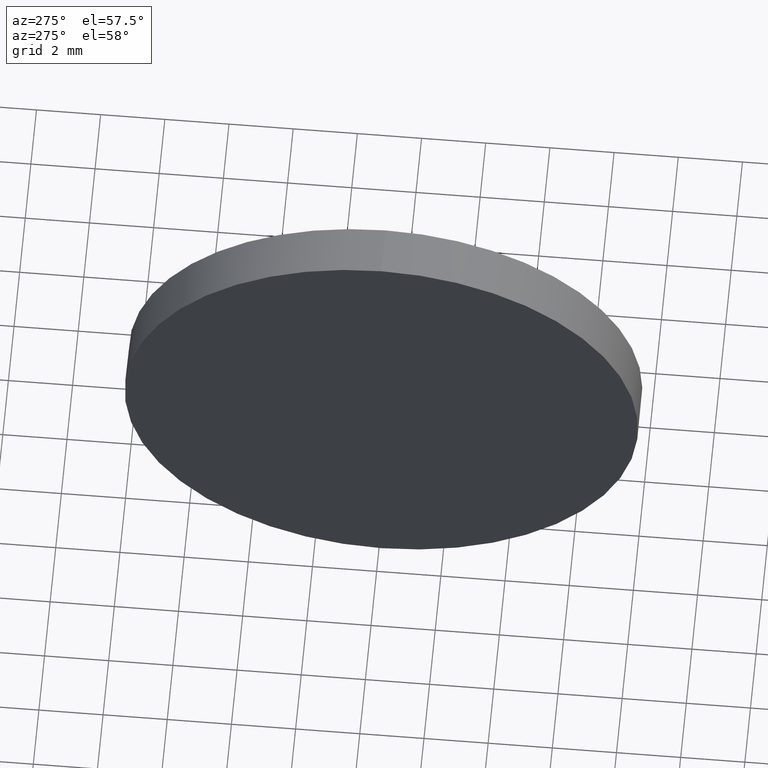
[diagram: clean part render]
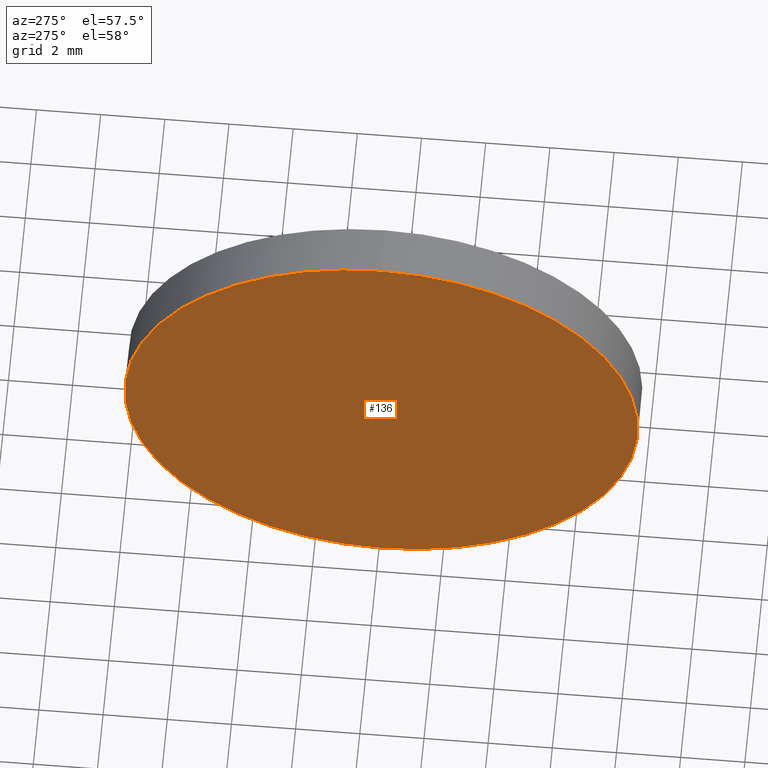
[diagram: same view with one face highlighted and labeled with its STEP entity id]
A machine part, auxiliary view. The second image highlights one B-rep face of the part: STEP entity #136.
In plain terms, the highlighted planar face has unit normal (1, 0, 0).
Its self-contained STEP definition (entity closure, byte-faithful):
#21 = DIRECTION ( 'NONE',  ( -1.000000000000000000, -0.0000000000000000000, -0.0000000000000000000 ) ) ;
#23 = CARTESIAN_POINT ( 'NONE',  ( 440.6452059022058700, 159.9103429002037700, 7.999999999999979600 ) ) ;
#35 = DIRECTION ( 'NONE',  ( 0.0000000000000000000, 0.0000000000000000000, 1.000000000000000000 ) ) ;
#36 = PLANE ( 'NONE',  #56 ) ;
#43 = EDGE_CURVE ( 'NONE', #141, #108, #65, .T. ) ;
#47 = DIRECTION ( 'NONE',  ( 0.0000000000000000000, 0.0000000000000000000, 1.000000000000000000 ) ) ;
#53 = CARTESIAN_POINT ( 'NONE',  ( 440.6452059022058700, 159.9103429002037700, 0.0000000000000000000 ) ) ;
#56 = AXIS2_PLACEMENT_3D ( 'NONE', #53, #107, #135 ) ;
#57 = EDGE_LOOP ( 'NONE', ( #163, #68 ) ) ;
#59 = AXIS2_PLACEMENT_3D ( 'NONE', #144, #131, #47 ) ;
#60 = EDGE_CURVE ( 'NONE', #108, #141, #147, .T. ) ;
#65 = CIRCLE ( 'NONE', #59, 7.999999999999979600 ) ;
#68 = ORIENTED_EDGE ( 'NONE', *, *, #60, .T. ) ;
#92 = CARTESIAN_POINT ( 'NONE',  ( 440.6452059022058700, 159.9103429002037700, -7.999999999999979600 ) ) ;
#106 = CARTESIAN_POINT ( 'NONE',  ( 440.6452059022058700, 159.9103429002037700, 0.0000000000000000000 ) ) ;
#107 = DIRECTION ( 'NONE',  ( 1.000000000000000000, 0.0000000000000000000, 0.0000000000000000000 ) ) ;
#108 = VERTEX_POINT ( 'NONE', #92 ) ;
#126 = AXIS2_PLACEMENT_3D ( 'NONE', #106, #21, #35 ) ;
#131 = DIRECTION ( 'NONE',  ( -1.000000000000000000, -0.0000000000000000000, -0.0000000000000000000 ) ) ;
#135 = DIRECTION ( 'NONE',  ( 0.0000000000000000000, 0.0000000000000000000, -1.000000000000000000 ) ) ;
#136 = ADVANCED_FACE ( 'NONE', ( #174 ), #36, .F. ) ;
#141 = VERTEX_POINT ( 'NONE', #23 ) ;
#144 = CARTESIAN_POINT ( 'NONE',  ( 440.6452059022058700, 159.9103429002037700, 0.0000000000000000000 ) ) ;
#147 = CIRCLE ( 'NONE', #126, 7.999999999999979600 ) ;
#163 = ORIENTED_EDGE ( 'NONE', *, *, #43, .T. ) ;
#174 = FACE_OUTER_BOUND ( 'NONE', #57, .T. ) ;